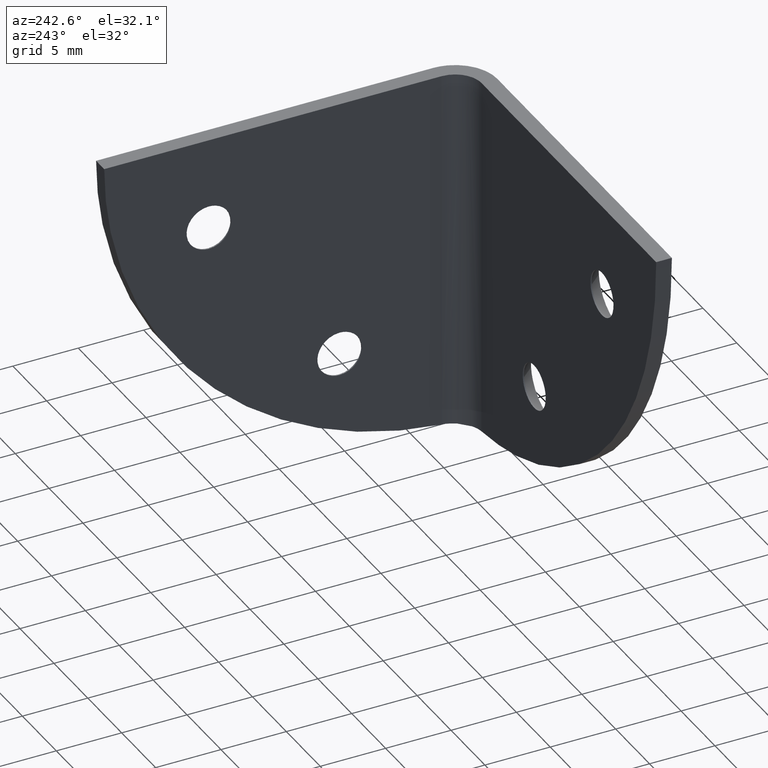
[diagram: clean part render]
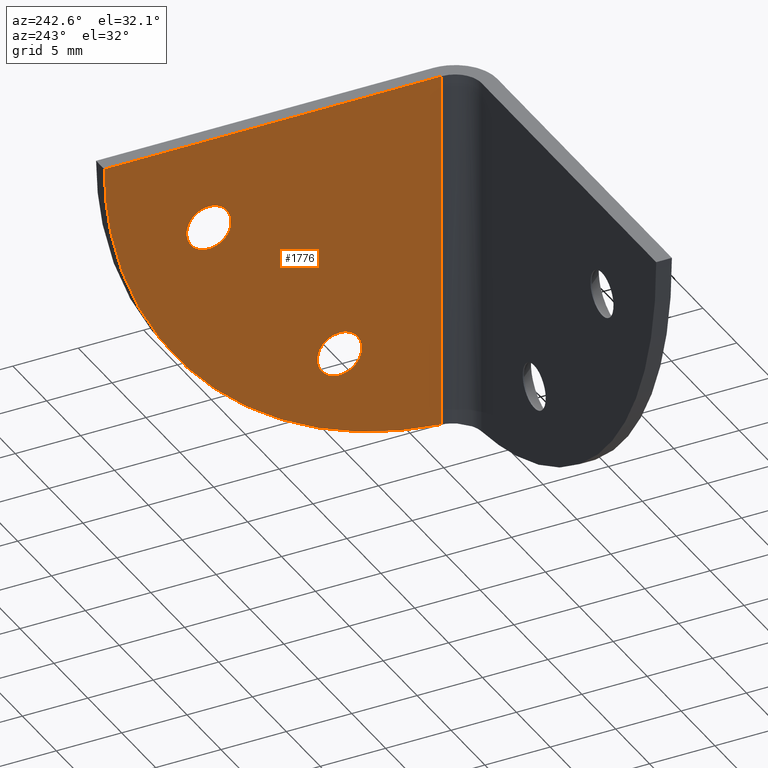
[diagram: same view with one face highlighted and labeled with its STEP entity id]
A machine part, auxiliary view. The second image highlights one B-rep face of the part: STEP entity #1776.
In plain terms, the highlighted face is a freeform B-spline surface patch.
Its self-contained STEP definition (entity closure, byte-faithful):
#79=CARTESIAN_POINT('',(-1.200000000000106,12.688897625441680,7.806028840346198));
#80=VERTEX_POINT('',#79);
#86=CARTESIAN_POINT('',(-1.200000000000106,11.0,6.300000000000000));
#87=VERTEX_POINT('',#86);
#88=CARTESIAN_POINT('',(-1.200000000000106,12.688897625441689,7.806028840346198));
#89=CARTESIAN_POINT('',(-1.200000000000106,12.515929056244509,6.299999999999999));
#90=CARTESIAN_POINT('',(-1.200000000000106,11.0,6.300000000000000));
#98=(BOUNDED_CURVE()B_SPLINE_CURVE(2,(#88,#89,#90),.UNSPECIFIED.,.F.,.U.)B_SPLINE_CURVE_WITH_KNOTS((3,3),(0.269767761807784,0.500000000000000),.UNSPECIFIED.)CURVE()GEOMETRIC_REPRESENTATION_ITEM()RATIONAL_B_SPLINE_CURVE((0.957343724760854,0.730266154725025,1.0))REPRESENTATION_ITEM(''));
#99=EDGE_CURVE('',#80,#87,#98,.T.);
#101=CARTESIAN_POINT('',(-1.200000000000106,9.303170842709930,7.896217482347586));
#102=VERTEX_POINT('',#101);
#103=CARTESIAN_POINT('',(-1.200000000000106,11.0,6.300000000000000));
#104=CARTESIAN_POINT('',(-1.200000000000106,9.400799687097194,6.299999999999999));
#105=CARTESIAN_POINT('',(-1.200000000000106,9.303170842709930,7.896217482347586));
#113=(BOUNDED_CURVE()B_SPLINE_CURVE(2,(#103,#104,#105),.UNSPECIFIED.,.F.,.U.)B_SPLINE_CURVE_WITH_KNOTS((3,3),(0.500000000000000,0.739332962151841),.UNSPECIFIED.)CURVE()GEOMETRIC_REPRESENTATION_ITEM()RATIONAL_B_SPLINE_CURVE((1.0,0.719603993388756,0.976072041480043))REPRESENTATION_ITEM(''));
#114=EDGE_CURVE('',#87,#102,#113,.T.);
#209=CARTESIAN_POINT('',(-1.200000000000106,11.0,9.700000000000001));
#210=VERTEX_POINT('',#209);
#211=CARTESIAN_POINT('',(-1.200000000000106,9.303170842709930,7.896217482347586));
#212=CARTESIAN_POINT('',(-1.200000000000106,9.299999999999997,7.948060301947998));
#213=CARTESIAN_POINT('',(-1.200000000000106,9.299999999999999,8.0));
#214=CARTESIAN_POINT('',(-1.200000000000106,9.299999999999999,9.700000000000003));
#215=CARTESIAN_POINT('',(-1.200000000000106,11.0,9.700000000000001));
#223=(BOUNDED_CURVE()B_SPLINE_CURVE(2,(#211,#212,#213,#214,#215),.UNSPECIFIED.,.F.,.U.)B_SPLINE_CURVE_WITH_KNOTS((3,2,3),(0.739332962151841,0.750000000000000,1.0),.UNSPECIFIED.)CURVE()GEOMETRIC_REPRESENTATION_ITEM()RATIONAL_B_SPLINE_CURVE((0.976072041480041,0.987502787797791,1.0,0.707106781186548,1.0))REPRESENTATION_ITEM(''));
#224=EDGE_CURVE('',#102,#210,#223,.T.);
#226=CARTESIAN_POINT('',(-1.200000000000106,11.0,9.700000000000001));
#227=CARTESIAN_POINT('',(-1.200000000000106,12.699999999999999,9.700000000000003));
#228=CARTESIAN_POINT('',(-1.200000000000106,12.699999999999999,8.0));
#229=CARTESIAN_POINT('',(-1.200000000000105,12.699999999999994,7.902696670569668));
#230=CARTESIAN_POINT('',(-1.200000000000106,12.688897625441689,7.806028840346198));
#238=(BOUNDED_CURVE()B_SPLINE_CURVE(2,(#226,#227,#228,#229,#230),.UNSPECIFIED.,.F.,.U.)B_SPLINE_CURVE_WITH_KNOTS((3,2,3),(0.0,0.250000000000000,0.269767761807784),.UNSPECIFIED.)CURVE()GEOMETRIC_REPRESENTATION_ITEM()RATIONAL_B_SPLINE_CURVE((1.0,0.707106781186548,1.0,0.976840626461522,0.957343724760854))REPRESENTATION_ITEM(''));
#239=EDGE_CURVE('',#210,#80,#238,.T.);
#407=CARTESIAN_POINT('',(-1.200000000000106,22.688897625441680,20.806028840346201));
#408=VERTEX_POINT('',#407);
#414=CARTESIAN_POINT('',(-1.200000000000106,21.0,19.300000000000001));
#415=VERTEX_POINT('',#414);
#416=CARTESIAN_POINT('',(-1.200000000000105,22.688897625441687,20.806028840346208));
#417=CARTESIAN_POINT('',(-1.200000000000106,22.515929056244513,19.299999999999997));
#418=CARTESIAN_POINT('',(-1.200000000000106,21.0,19.300000000000001));
#426=(BOUNDED_CURVE()B_SPLINE_CURVE(2,(#416,#417,#418),.UNSPECIFIED.,.F.,.U.)B_SPLINE_CURVE_WITH_KNOTS((3,3),(0.269767761807784,0.500000000000000),.UNSPECIFIED.)CURVE()GEOMETRIC_REPRESENTATION_ITEM()RATIONAL_B_SPLINE_CURVE((0.957343724760854,0.730266154725025,1.0))REPRESENTATION_ITEM(''));
#427=EDGE_CURVE('',#408,#415,#426,.T.);
#429=CARTESIAN_POINT('',(-1.200000000000106,19.303170842709932,20.896217482347581));
#430=VERTEX_POINT('',#429);
#431=CARTESIAN_POINT('',(-1.200000000000106,21.0,19.300000000000001));
#432=CARTESIAN_POINT('',(-1.200000000000106,19.400799687097198,19.300000000000001));
#433=CARTESIAN_POINT('',(-1.200000000000106,19.303170842709932,20.896217482347588));
#441=(BOUNDED_CURVE()B_SPLINE_CURVE(2,(#431,#432,#433),.UNSPECIFIED.,.F.,.U.)B_SPLINE_CURVE_WITH_KNOTS((3,3),(0.500000000000000,0.739332962151841),.UNSPECIFIED.)CURVE()GEOMETRIC_REPRESENTATION_ITEM()RATIONAL_B_SPLINE_CURVE((1.0,0.719603993388756,0.976072041480043))REPRESENTATION_ITEM(''));
#442=EDGE_CURVE('',#415,#430,#441,.T.);
#537=CARTESIAN_POINT('',(-1.200000000000106,21.0,22.699999999999999));
#538=VERTEX_POINT('',#537);
#539=CARTESIAN_POINT('',(-1.200000000000106,19.303170842709932,20.896217482347581));
#540=CARTESIAN_POINT('',(-1.200000000000106,19.299999999999994,20.948060301947997));
#541=CARTESIAN_POINT('',(-1.200000000000106,19.300000000000001,21.0));
#542=CARTESIAN_POINT('',(-1.200000000000106,19.300000000000004,22.699999999999999));
#543=CARTESIAN_POINT('',(-1.200000000000106,21.0,22.699999999999999));
#551=(BOUNDED_CURVE()B_SPLINE_CURVE(2,(#539,#540,#541,#542,#543),.UNSPECIFIED.,.F.,.U.)B_SPLINE_CURVE_WITH_KNOTS((3,2,3),(0.739332962151841,0.750000000000000,1.0),.UNSPECIFIED.)CURVE()GEOMETRIC_REPRESENTATION_ITEM()RATIONAL_B_SPLINE_CURVE((0.976072041480041,0.987502787797791,1.0,0.707106781186548,1.0))REPRESENTATION_ITEM(''));
#552=EDGE_CURVE('',#430,#538,#551,.T.);
#554=CARTESIAN_POINT('',(-1.200000000000106,21.0,22.699999999999999));
#555=CARTESIAN_POINT('',(-1.200000000000106,22.699999999999999,22.699999999999999));
#556=CARTESIAN_POINT('',(-1.200000000000106,22.699999999999999,21.0));
#557=CARTESIAN_POINT('',(-1.200000000000106,22.699999999999996,20.902696670569672));
#558=CARTESIAN_POINT('',(-1.200000000000105,22.688897625441687,20.806028840346208));
#566=(BOUNDED_CURVE()B_SPLINE_CURVE(2,(#554,#555,#556,#557,#558),.UNSPECIFIED.,.F.,.U.)B_SPLINE_CURVE_WITH_KNOTS((3,2,3),(0.0,0.250000000000000,0.269767761807784),.UNSPECIFIED.)CURVE()GEOMETRIC_REPRESENTATION_ITEM()RATIONAL_B_SPLINE_CURVE((1.0,0.707106781186548,1.0,0.976840626461523,0.957343724760854))REPRESENTATION_ITEM(''));
#567=EDGE_CURVE('',#538,#408,#566,.T.);
#1489=CARTESIAN_POINT('',(-1.200000000000102,3.199999999999900,28.0));
#1490=VERTEX_POINT('',#1489);
#1504=CARTESIAN_POINT('',(-1.200000000000090,3.199999999999900,0.085848375801868));
#1505=VERTEX_POINT('',#1504);
#1506=CARTESIAN_POINT('',(-1.200000000000090,3.199999999999900,0.085848375801868));
#1507=CARTESIAN_POINT('',(-1.200000000000102,3.199999999999900,28.0));
#1508=QUASI_UNIFORM_CURVE('',1,(#1506,#1507),.UNSPECIFIED.,.F.,.U.);
#1509=EDGE_CURVE('',#1505,#1490,#1508,.T.);
#1582=CARTESIAN_POINT('',(-1.200000000000090,29.0,28.0));
#1583=VERTEX_POINT('',#1582);
#1584=CARTESIAN_POINT('',(-1.200000000000090,3.199999999999900,0.085848375801868));
#1585=CARTESIAN_POINT('',(-1.200000000000090,29.000659947991174,2.119329620561616));
#1586=CARTESIAN_POINT('',(-1.200000000000090,29.0,28.0));
#1594=(BOUNDED_CURVE()B_SPLINE_CURVE(2,(#1584,#1585,#1586),.UNSPECIFIED.,.F.,.U.)CURVE()GEOMETRIC_REPRESENTATION_ITEM()QUASI_UNIFORM_CURVE()RATIONAL_B_SPLINE_CURVE((1.0,0.734352097899734,1.0))REPRESENTATION_ITEM(''));
#1595=EDGE_CURVE('',#1505,#1583,#1594,.T.);
#1716=CARTESIAN_POINT('',(-1.200000000000090,29.0,28.0));
#1717=CARTESIAN_POINT('',(-1.200000000000102,3.199999999999900,28.0));
#1718=QUASI_UNIFORM_CURVE('',1,(#1716,#1717),.UNSPECIFIED.,.F.,.U.);
#1719=EDGE_CURVE('',#1583,#1490,#1718,.T.);
#1754=CARTESIAN_POINT('',(-1.200000000000102,1.911290050005301,-1.308463443723787));
#1755=CARTESIAN_POINT('',(-1.200000000000102,30.288710642004521,-1.308463443723787));
#1756=CARTESIAN_POINT('',(-1.200000000000102,1.911290050005301,29.394312568241549));
#1757=CARTESIAN_POINT('',(-1.200000000000102,30.288710642004521,29.394312568241549));
#1758=B_SPLINE_SURFACE_WITH_KNOTS('',1,1,((#1754,#1756),(#1755,#1757)),.UNSPECIFIED.,.F.,.F.,.U.,(2,2),(2,2),(0.0,28.377420591999218),(0.0,30.702776011965330),.UNSPECIFIED.);
#1759=ORIENTED_EDGE('',*,*,#1595,.F.);
#1760=ORIENTED_EDGE('',*,*,#1509,.T.);
#1761=ORIENTED_EDGE('',*,*,#1719,.F.);
#1762=EDGE_LOOP('',(#1759,#1760,#1761));
#1763=FACE_OUTER_BOUND('',#1762,.T.);
#1764=ORIENTED_EDGE('',*,*,#442,.F.);
#1765=ORIENTED_EDGE('',*,*,#427,.F.);
#1766=ORIENTED_EDGE('',*,*,#567,.F.);
#1767=ORIENTED_EDGE('',*,*,#552,.F.);
#1768=EDGE_LOOP('',(#1764,#1765,#1766,#1767));
#1769=FACE_BOUND('',#1768,.T.);
#1770=ORIENTED_EDGE('',*,*,#114,.F.);
#1771=ORIENTED_EDGE('',*,*,#99,.F.);
#1772=ORIENTED_EDGE('',*,*,#239,.F.);
#1773=ORIENTED_EDGE('',*,*,#224,.F.);
#1774=EDGE_LOOP('',(#1770,#1771,#1772,#1773));
#1775=FACE_BOUND('',#1774,.T.);
#1776=ADVANCED_FACE('',(#1763,#1769,#1775),#1758,.F.);